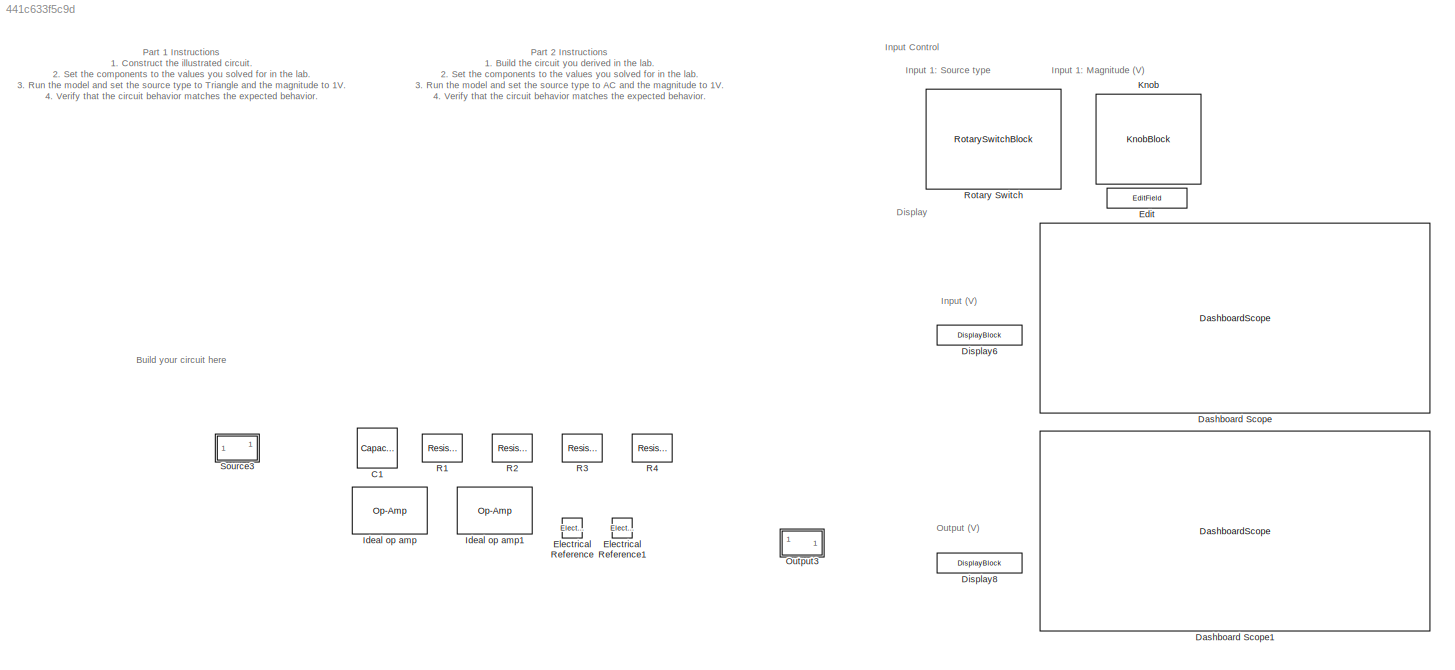
MODEL slx_441c633f5c9d
KIND model
CONFIG AbsTol = auto
CONFIG EnableMultiTasking = off
CONFIG FixedStep = auto
CONFIG MaxStep = 1e-5
CONFIG MinStep = auto
CONFIG RelTol = 1e-3
CONFIG SampleTimeConstraint = Unconstrained
CONFIG SolverName = VariableStepAuto
CONFIG StartTime = 0.0
CONFIG StopTime = inf
BLOCK [Reference] C1  REF=fl_lib/Electrical/Electrical Elements/Capacitor
  AttributesFormatString = %<c> %<c_unit>
  NameLocation = top
  SourceBlock = fl_lib/Electrical/Electrical Elements/Capacitor
  SourceType = Capacitor
BLOCK [DashboardScope] Dashboard Scope
  ScaleAtStop = off
  TimeSpan = 0.10000000000000001
  Ymax = 10
  Ymin = -10
BLOCK [DashboardScope] Dashboard Scope1
  ScaleAtStop = off
  TimeSpan = 0.10000000000000001
  Ymax = 10
  Ymin = -10
BLOCK [DisplayBlock] Display6
  Alignment = Right
  Format = Custom
  FormatString = %0.4f
  LabelPosition = Hide
  Transparency = 1
BLOCK [DisplayBlock] Display8
  Alignment = Right
  Format = Custom
  FormatString = %0.4f
  LabelPosition = Hide
  Transparency = 1
BLOCK [EditField] Edit
  Alignment = Center
  LabelPosition = Hide
  ShowInitialText = on
BLOCK [Reference] Electrical Reference  REF=fl_lib/Electrical/Electrical Elements/Electrical Reference
  NameLocation = right
  SourceBlock = fl_lib/Electrical/Electrical Elements/Electrical Reference
  SourceType = Electrical Reference
BLOCK [Reference] Electrical Reference1  REF=fl_lib/Electrical/Electrical Elements/Electrical Reference
  NameLocation = right
  SourceBlock = fl_lib/Electrical/Electrical Elements/Electrical Reference
  SourceType = Electrical Reference
BLOCK [Reference] Ideal op amp  REF=fl_lib/Electrical/Electrical Elements/Op-Amp
  SourceBlock = fl_lib/Electrical/Electrical Elements/Op-Amp
  SourceType = Op-Amp
BLOCK [Reference] Ideal op amp1  REF=fl_lib/Electrical/Electrical Elements/Op-Amp
  SourceBlock = fl_lib/Electrical/Electrical Elements/Op-Amp
  SourceType = Op-Amp
BLOCK [KnobBlock] Knob
  LabelPosition = Hide
  ScaleMax = 4
  ScaleMin = -4
  TickInterval = 1
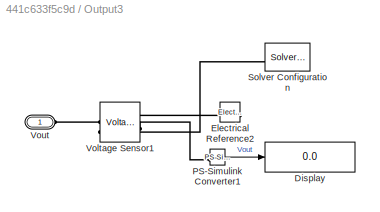
BLOCK [SubSystem] Output3
BLOCK [Display] Output3/Display
  Decimation = 1
BLOCK [Reference] Output3/Electrical Reference2  REF=fl_lib/Electrical/Electrical Elements/Electrical Reference
  NameLocation = top
  SourceBlock = fl_lib/Electrical/Electrical Elements/Electrical Reference
  SourceType = Electrical Reference
BLOCK [Reference] Output3/PS-Simulink Converter1  REF=nesl_utility/PS-Simulink
Converter
  SourceBlock = nesl_utility/PS-Simulink\nConverter
  SourceType = PS-Simulink\nConverter
BLOCK [Reference] Output3/Solver Configuration  REF=nesl_utility/Solver
Configuration
  NameLocation = top
  SourceBlock = nesl_utility/Solver\nConfiguration
  SourceType = Solver\nConfiguration
BLOCK [Reference] Output3/Voltage Sensor1  REF=fl_lib/Electrical/Electrical Sensors/Voltage Sensor
  NameLocation = top
  SourceBlock = fl_lib/Electrical/Electrical Sensors/Voltage Sensor
  SourceType = Voltage Sensor
BLOCK [PMIOPort] Output3/Vout
  Side = Left
BLOCK [Reference] R1  REF=fl_lib/Electrical/Electrical Elements/Resistor
  AttributesFormatString = %<R> %<R_unit>
  NameLocation = top
  SourceBlock = fl_lib/Electrical/Electrical Elements/Resistor
  SourceType = Resistor
BLOCK [Reference] R2  REF=fl_lib/Electrical/Electrical Elements/Resistor
  AttributesFormatString = %<R> %<R_unit>
  NameLocation = top
  SourceBlock = fl_lib/Electrical/Electrical Elements/Resistor
  SourceType = Resistor
BLOCK [Reference] R3  REF=fl_lib/Electrical/Electrical Elements/Resistor
  AttributesFormatString = %<R> %<R_unit>
  NameLocation = top
  SourceBlock = fl_lib/Electrical/Electrical Elements/Resistor
  SourceType = Resistor
BLOCK [Reference] R4  REF=fl_lib/Electrical/Electrical Elements/Resistor
  AttributesFormatString = %<R> %<R_unit>
  NameLocation = top
  SourceBlock = fl_lib/Electrical/Electrical Elements/Resistor
  SourceType = Resistor
BLOCK [RotarySwitchBlock] Rotary Switch
  LabelPosition = Hide
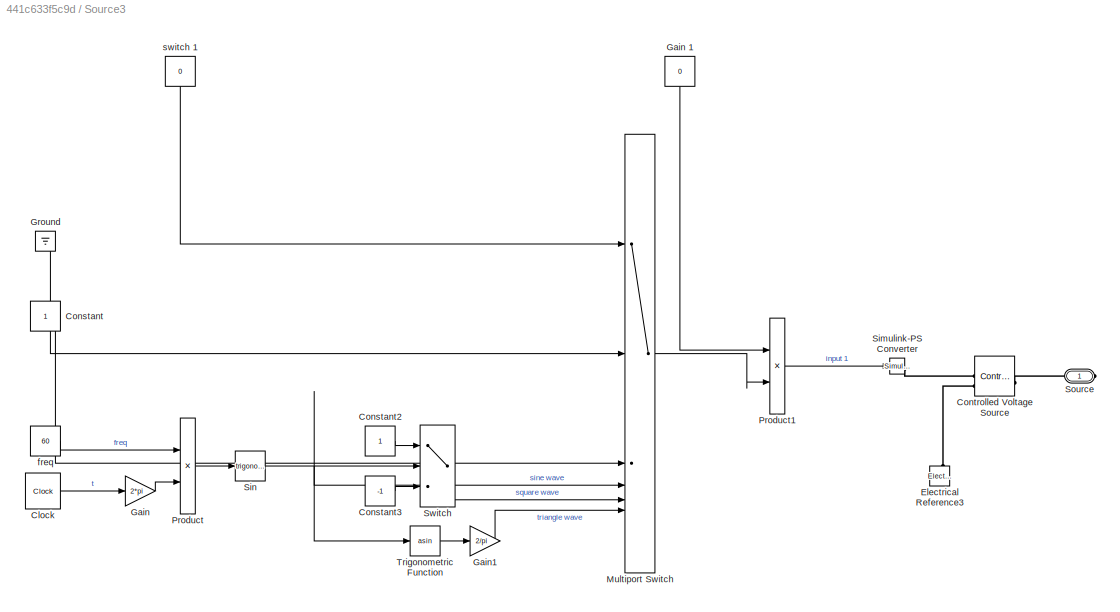
BLOCK [SubSystem] Source3
BLOCK [Clock] Source3/Clock
BLOCK [Constant] Source3/Constant
BLOCK [Constant] Source3/Constant2
  SampleTime = 0
BLOCK [Constant] Source3/Constant3
  SampleTime = 0
  Value = -1
BLOCK [Reference] Source3/Controlled Voltage Source  REF=fl_lib/Electrical/Electrical Sources/Controlled Voltage
Source
  NameLocation = top
  SourceBlock = fl_lib/Electrical/Electrical Sources/Controlled Voltage\nSource
  SourceType = Controlled Voltage\nSource
BLOCK [Reference] Source3/Electrical Reference3  REF=fl_lib/Electrical/Electrical Elements/Electrical Reference
  NameLocation = right
  SourceBlock = fl_lib/Electrical/Electrical Elements/Electrical Reference
  SourceType = Electrical Reference
BLOCK [Gain] Source3/Gain
  Gain = 2*pi
BLOCK [Constant] Source3/Gain 1
  NameLocation = top
  Value = 0
BLOCK [Gain] Source3/Gain1
  Gain = 2/pi
BLOCK [Ground] Source3/Ground
BLOCK [MultiPortSwitch] Source3/Multiport Switch
  DataPortOrder = Zero-based contiguous
  InputSameDT = off
  Inputs = 5
  SaturateOnIntegerOverflow = off
  zeroidx = on
BLOCK [Product] Source3/Product
BLOCK [Product] Source3/Product1
BLOCK [Reference] Source3/Simulink-PS Converter  REF=nesl_utility/Simulink-PS
Converter
  SourceBlock = nesl_utility/Simulink-PS\nConverter
  SourceType = Simulink-PS\nConverter
BLOCK [Trigonometry] Source3/Sin
BLOCK [PMIOPort] Source3/Source
  Side = Right
BLOCK [Switch] Source3/Switch
  Criteria = u2 > Threshold
  InputSameDT = off
  SaturateOnIntegerOverflow = off
BLOCK [Trigonometry] Source3/Trigonometric Function
  Operator = asin
BLOCK [Constant] Source3/freq
  NameLocation = left
  SampleTime = 0
  Value = 60
BLOCK [Constant] Source3/switch 1
  NameLocation = top
  Value = 0
ANNOTATION (root): Build your circuit here
ANNOTATION (root): Part 1 Instructions 1. Construct the illustrated circuit. 2. Set the components to the values you solved for in the lab. 3. Run the model and set the source type to Triangle and the magnitude to 1V. 4. Verify that the circuit behavior matches the expected behavior.
ANNOTATION (root): Part 2 Instructions 1. Build the circuit you derived in the lab. 2. Set the components to the values you solved for in the lab. 3. Run the model and set the source type to AC and the magnitude to 1V. 4. Verify that the circuit behavior matches the expected behavior.
ANNOTATION (root): Display
ANNOTATION (root): Input (V)
ANNOTATION (root): Input 1: Magnitude (V)
ANNOTATION (root): Input 1: Source type
ANNOTATION (root): Input Control
ANNOTATION (root): Output (V)
LINE Output3/PS-Simulink Converter1:1 -> Output3/Display:1
LINE Source3/Clock:1 -> Source3/Gain:1
LINE Source3/Constant2:1 -> Source3/Switch:1
LINE Source3/Constant3:1 -> Source3/Switch:3
LINE Source3/Constant:1 -> Source3/Multiport Switch:3
LINE Source3/Gain 1:1 -> Source3/Product1:1
LINE Source3/Gain1:1 -> Source3/Multiport Switch:6
LINE Source3/Gain:1 -> Source3/Product:2
LINE Source3/Ground:1 -> Source3/Multiport Switch:2
LINE Source3/Multiport Switch:1 -> Source3/Product1:2
LINE Source3/Product1:1 -> Source3/Simulink-PS Converter:1
LINE Source3/Product:1 -> Source3/Sin:1
NET Source3/Sin:1 -> Source3/Multiport Switch:4, Source3/Switch:2, Source3/Trigonometric Function:1
LINE Source3/Switch:1 -> Source3/Multiport Switch:5
LINE Source3/Trigonometric Function:1 -> Source3/Gain1:1
LINE Source3/freq:1 -> Source3/Product:1
LINE Source3/switch 1:1 -> Source3/Multiport Switch:1
PNET net1: Output3/Electrical Reference2:LConn1 -- Output3/Solver Configuration:RConn1 -- Output3/Voltage Sensor1:RConn2
PLINE Output3/PS-Simulink Converter1:LConn1 -- Output3/Voltage Sensor1:RConn1
PLINE Output3/Voltage Sensor1:LConn1 -- Output3/Vout:RConn1
PLINE Source3/Controlled Voltage Source:LConn1 -- Source3/Source:RConn1
PLINE Source3/Controlled Voltage Source:RConn1 -- Source3/Simulink-PS Converter:RConn1
PLINE Source3/Controlled Voltage Source:RConn2 -- Source3/Electrical Reference3:LConn1
note: NET lines group one-source signal fan-out (src -> all destinations, sorted); 1:1 wires keep LINE; PNET lines group multi-terminal physical nets as a canonical sorted terminal list (undirected conserving connections); 2-terminal nets keep the pairwise PLINE form
